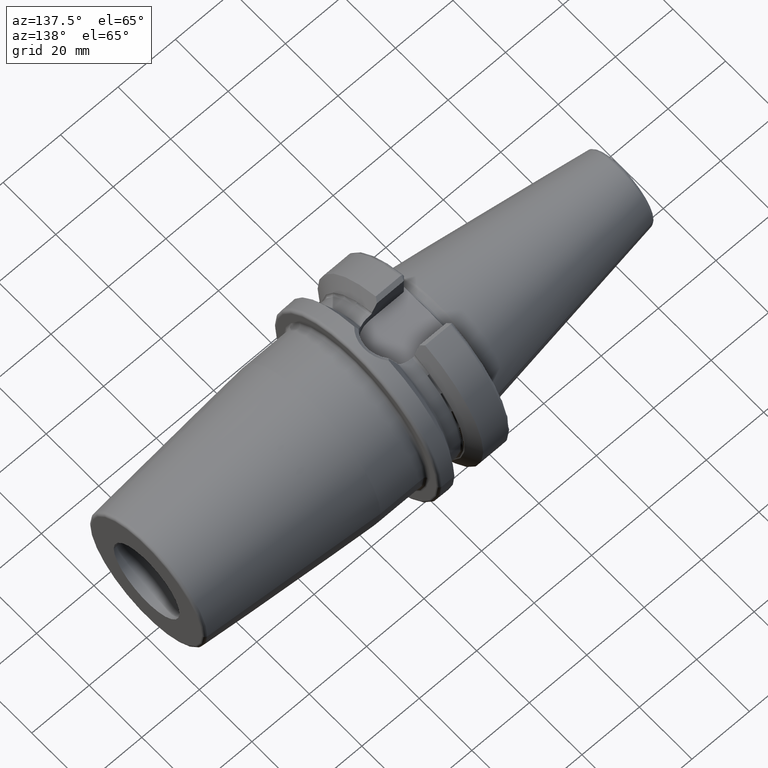
[diagram: clean part render]
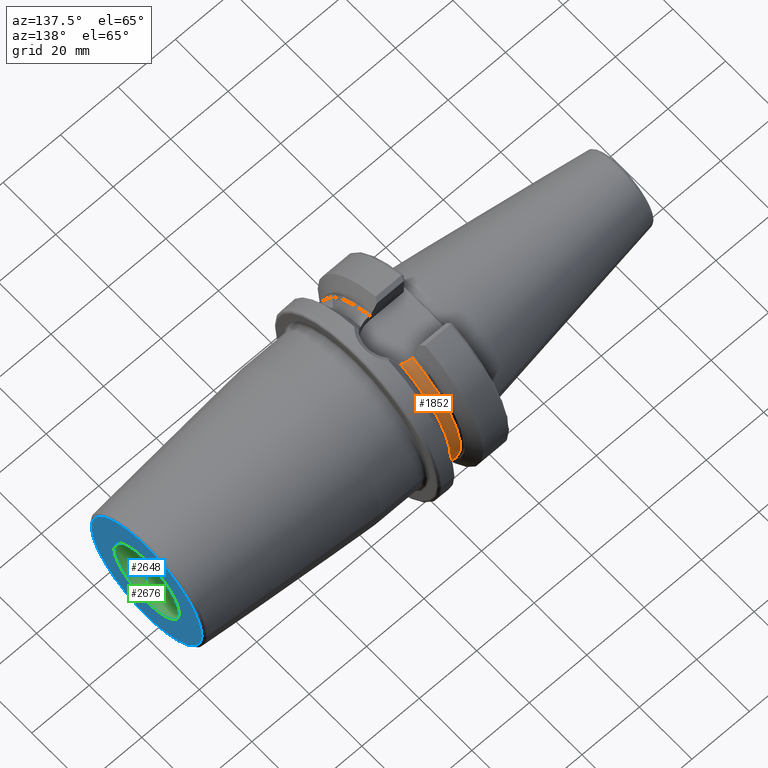
[diagram: same view with three faces highlighted in distinct colors, each labeled with its STEP entity id]
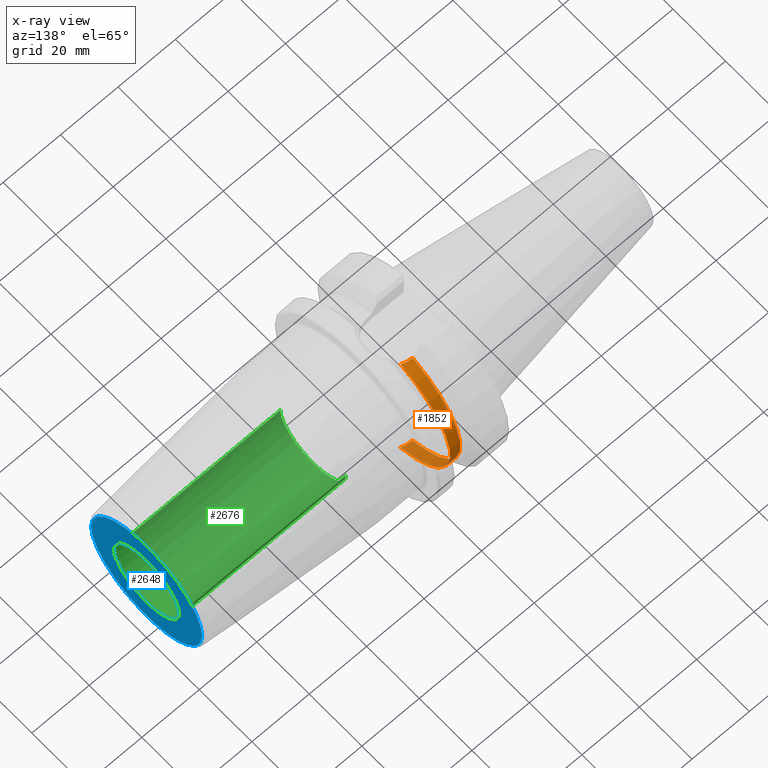
[diagram: x-ray of the same camera — body ghosted, the three highlighted faces saturated]
A machine part, auxiliary view with three faces highlighted in distinct colors.
The next image is the same camera in x-ray (body ghosted, the three faces saturated) — at least one of them is partly hidden behind the body in this view.
Their STEP definitions:

[orange] entity #1852 — the highlighted cylindrical surface (partial cylindrical patch) has radius 26.375 mm, axis along (1, 0, 0).
#185=DIRECTION('',(1.E0,2.074577330686E-14,0.E0));
#186=VECTOR('',#185,3.425E-1);
#187=CARTESIAN_POINT('',(1.48125E1,8.095E0,-2.510202382279E1));
#188=LINE('',#187,#186);
#348=CARTESIAN_POINT('',(1.48125E1,0.E0,0.E0));
#349=DIRECTION('',(-1.E0,0.E0,0.E0));
#350=DIRECTION('',(0.E0,3.069194312796E-1,9.517355003902E-1));
#351=AXIS2_PLACEMENT_3D('',#348,#349,#350);
#353=CARTESIAN_POINT('',(1.5155E1,8.095E0,-2.510202382279E1));
#354=CARTESIAN_POINT('',(1.552274115811E1,8.095E0,-2.510202382279E1));
#355=CARTESIAN_POINT('',(1.625266243215E1,8.045449937199E0,-2.511808739773E1));
#356=CARTESIAN_POINT('',(1.734035783533E1,7.820815510938E0,-2.518941465745E1));
#357=CARTESIAN_POINT('',(1.804170386658E1,7.572200800424E0,-2.526513476705E1));
#358=CARTESIAN_POINT('',(1.83875E1,7.421588020768E0,-2.530929979770E1));
#360=CARTESIAN_POINT('',(1.83875E1,7.421588020768E0,2.530929979770E1));
#361=CARTESIAN_POINT('',(1.804170386658E1,7.572200800424E0,2.526513476705E1));
#362=CARTESIAN_POINT('',(1.734035783533E1,7.820815510938E0,2.518941465745E1));
#363=CARTESIAN_POINT('',(1.625266243215E1,8.045449937199E0,2.511808739773E1));
#364=CARTESIAN_POINT('',(1.552274115811E1,8.095E0,2.510202382279E1));
#365=CARTESIAN_POINT('',(1.5155E1,8.095E0,2.510202382279E1));
#450=CARTESIAN_POINT('',(1.83875E1,0.E0,0.E0));
#451=DIRECTION('',(-1.E0,0.E0,0.E0));
#452=DIRECTION('',(0.E0,2.813872235362E-1,9.595943051262E-1));
#453=AXIS2_PLACEMENT_3D('',#450,#451,#452);
#657=DIRECTION('',(1.E0,0.E0,0.E0));
#658=VECTOR('',#657,3.425E-1);
#659=CARTESIAN_POINT('',(1.48125E1,8.095E0,2.510202382279E1));
#660=LINE('',#659,#658);
#1190=CARTESIAN_POINT('',(1.48125E1,8.095E0,2.510202382279E1));
#1191=CARTESIAN_POINT('',(1.48125E1,8.095E0,-2.510202382279E1));
#1192=VERTEX_POINT('',#1190);
#1193=VERTEX_POINT('',#1191);
#1202=CARTESIAN_POINT('',(1.83875E1,7.421588020768E0,2.530929979770E1));
#1203=CARTESIAN_POINT('',(1.83875E1,7.421588020768E0,-2.530929979770E1));
#1204=VERTEX_POINT('',#1202);
#1205=VERTEX_POINT('',#1203);
#1324=CARTESIAN_POINT('',(1.5155E1,8.095E0,2.510202382279E1));
#1325=VERTEX_POINT('',#1324);
#1332=CARTESIAN_POINT('',(1.5155E1,8.095E0,-2.510202382279E1));
#1333=VERTEX_POINT('',#1332);
#1835=CARTESIAN_POINT('',(1.106999478413E1,0.E0,0.E0));
#1836=DIRECTION('',(1.E0,0.E0,0.E0));
#1837=DIRECTION('',(0.E0,-1.E0,0.E0));
#1838=AXIS2_PLACEMENT_3D('',#1835,#1836,#1837);
#1839=CYLINDRICAL_SURFACE('',#1838,2.6375E1);
#1840=ORIENTED_EDGE('',*,*,#1814,.T.);
#1841=ORIENTED_EDGE('',*,*,#1645,.T.);
#1843=ORIENTED_EDGE('',*,*,#1842,.T.);
#1845=ORIENTED_EDGE('',*,*,#1844,.F.);
#1847=ORIENTED_EDGE('',*,*,#1846,.T.);
#1849=ORIENTED_EDGE('',*,*,#1848,.F.);
#1850=EDGE_LOOP('',(#1840,#1841,#1843,#1845,#1847,#1849));
#1851=FACE_OUTER_BOUND('',#1850,.F.);
#1852=ADVANCED_FACE('',(#1851),#1839,.T.);
#352=CIRCLE('',#351,2.6375E1);
#359=B_SPLINE_CURVE_WITH_KNOTS('',3,(#353,#354,#355,#356,#357,#358),
.UNSPECIFIED.,.F.,.F.,(4,1,1,4),(0.E0,3.333333333333E-1,6.666666666667E-1,1.E0),
.UNSPECIFIED.);
#366=B_SPLINE_CURVE_WITH_KNOTS('',3,(#360,#361,#362,#363,#364,#365),
.UNSPECIFIED.,.F.,.F.,(4,1,1,4),(0.E0,3.333333333333E-1,6.666666666667E-1,1.E0),
.UNSPECIFIED.);
#454=CIRCLE('',#453,2.6375E1);
#1645=EDGE_CURVE('',#1193,#1333,#188,.T.);
#1814=EDGE_CURVE('',#1192,#1193,#352,.T.);
#1842=EDGE_CURVE('',#1333,#1205,#359,.T.);
#1844=EDGE_CURVE('',#1204,#1205,#454,.T.);
#1846=EDGE_CURVE('',#1204,#1325,#366,.T.);
#1848=EDGE_CURVE('',#1192,#1325,#660,.T.);

[blue] entity #2648 — the highlighted planar face has unit normal (1, 0, 0).
#912=CARTESIAN_POINT('',(1.E2,0.E0,0.E0));
#913=DIRECTION('',(-1.E0,0.E0,0.E0));
#914=DIRECTION('',(0.E0,1.E0,0.E0));
#915=AXIS2_PLACEMENT_3D('',#912,#913,#914);
#917=CARTESIAN_POINT('',(1.E2,0.E0,0.E0));
#918=DIRECTION('',(-1.E0,0.E0,0.E0));
#919=DIRECTION('',(0.E0,-1.E0,0.E0));
#920=AXIS2_PLACEMENT_3D('',#917,#918,#919);
#922=CARTESIAN_POINT('',(1.E2,0.E0,0.E0));
#923=DIRECTION('',(1.E0,0.E0,0.E0));
#924=DIRECTION('',(0.E0,1.E0,0.E0));
#925=AXIS2_PLACEMENT_3D('',#922,#923,#924);
#927=CARTESIAN_POINT('',(1.E2,0.E0,0.E0));
#928=DIRECTION('',(1.E0,0.E0,0.E0));
#929=DIRECTION('',(0.E0,-1.E0,0.E0));
#930=AXIS2_PLACEMENT_3D('',#927,#928,#929);
#1397=CARTESIAN_POINT('',(1.E2,1.25E1,0.E0));
#1398=VERTEX_POINT('',#1397);
#1399=CARTESIAN_POINT('',(1.E2,-1.25E1,0.E0));
#1400=VERTEX_POINT('',#1399);
#1417=CARTESIAN_POINT('',(1.E2,2.107560950834E1,0.E0));
#1418=CARTESIAN_POINT('',(1.E2,-2.107560950834E1,0.E0));
#1419=VERTEX_POINT('',#1417);
#1420=VERTEX_POINT('',#1418);
#2633=CARTESIAN_POINT('',(1.E2,0.E0,0.E0));
#2634=DIRECTION('',(1.E0,0.E0,0.E0));
#2635=DIRECTION('',(0.E0,-1.E0,0.E0));
#2636=AXIS2_PLACEMENT_3D('',#2633,#2634,#2635);
#2637=PLANE('',#2636);
#2638=ORIENTED_EDGE('',*,*,#2600,.T.);
#2639=ORIENTED_EDGE('',*,*,#2615,.T.);
#2640=EDGE_LOOP('',(#2638,#2639));
#2641=FACE_OUTER_BOUND('',#2640,.F.);
#2643=ORIENTED_EDGE('',*,*,#2642,.T.);
#2645=ORIENTED_EDGE('',*,*,#2644,.T.);
#2646=EDGE_LOOP('',(#2643,#2645));
#2647=FACE_BOUND('',#2646,.F.);
#2648=ADVANCED_FACE('',(#2641,#2647),#2637,.T.);
#916=CIRCLE('',#915,2.107560950834E1);
#921=CIRCLE('',#920,2.107560950834E1);
#926=CIRCLE('',#925,1.25E1);
#931=CIRCLE('',#930,1.25E1);
#2600=EDGE_CURVE('',#1419,#1420,#916,.T.);
#2615=EDGE_CURVE('',#1420,#1419,#921,.T.);
#2642=EDGE_CURVE('',#1398,#1400,#926,.T.);
#2644=EDGE_CURVE('',#1400,#1398,#931,.T.);

[green] entity #2676 — the highlighted cylindrical surface (partial cylindrical patch) has radius 12.5 mm, axis along (1, 0, 0).
#927=CARTESIAN_POINT('',(1.E2,0.E0,0.E0));
#928=DIRECTION('',(1.E0,0.E0,0.E0));
#929=DIRECTION('',(0.E0,-1.E0,0.E0));
#930=AXIS2_PLACEMENT_3D('',#927,#928,#929);
#932=DIRECTION('',(-1.E0,0.E0,0.E0));
#933=VECTOR('',#932,5.8E1);
#934=CARTESIAN_POINT('',(1.E2,1.25E1,0.E0));
#935=LINE('',#934,#933);
#936=DIRECTION('',(-1.E0,0.E0,0.E0));
#937=VECTOR('',#936,5.8E1);
#938=CARTESIAN_POINT('',(1.E2,-1.25E1,0.E0));
#939=LINE('',#938,#937);
#940=CARTESIAN_POINT('',(4.2E1,0.E0,0.E0));
#941=DIRECTION('',(-1.E0,0.E0,0.E0));
#942=DIRECTION('',(0.E0,1.E0,0.E0));
#943=AXIS2_PLACEMENT_3D('',#940,#941,#942);
#1393=CARTESIAN_POINT('',(4.2E1,1.25E1,0.E0));
#1394=CARTESIAN_POINT('',(4.2E1,-1.25E1,0.E0));
#1395=VERTEX_POINT('',#1393);
#1396=VERTEX_POINT('',#1394);
#1397=CARTESIAN_POINT('',(1.E2,1.25E1,0.E0));
#1398=VERTEX_POINT('',#1397);
#1399=CARTESIAN_POINT('',(1.E2,-1.25E1,0.E0));
#1400=VERTEX_POINT('',#1399);
#2664=CARTESIAN_POINT('',(3.91E1,0.E0,0.E0));
#2665=DIRECTION('',(1.E0,0.E0,0.E0));
#2666=DIRECTION('',(0.E0,-1.E0,0.E0));
#2667=AXIS2_PLACEMENT_3D('',#2664,#2665,#2666);
#2668=CYLINDRICAL_SURFACE('',#2667,1.25E1);
#2669=ORIENTED_EDGE('',*,*,#2654,.F.);
#2670=ORIENTED_EDGE('',*,*,#2644,.F.);
#2671=ORIENTED_EDGE('',*,*,#2658,.T.);
#2673=ORIENTED_EDGE('',*,*,#2672,.F.);
#2674=EDGE_LOOP('',(#2669,#2670,#2671,#2673));
#2675=FACE_OUTER_BOUND('',#2674,.F.);
#2676=ADVANCED_FACE('',(#2675),#2668,.F.);
#931=CIRCLE('',#930,1.25E1);
#944=CIRCLE('',#943,1.25E1);
#2644=EDGE_CURVE('',#1400,#1398,#931,.T.);
#2654=EDGE_CURVE('',#1398,#1395,#935,.T.);
#2658=EDGE_CURVE('',#1400,#1396,#939,.T.);
#2672=EDGE_CURVE('',#1395,#1396,#944,.T.);